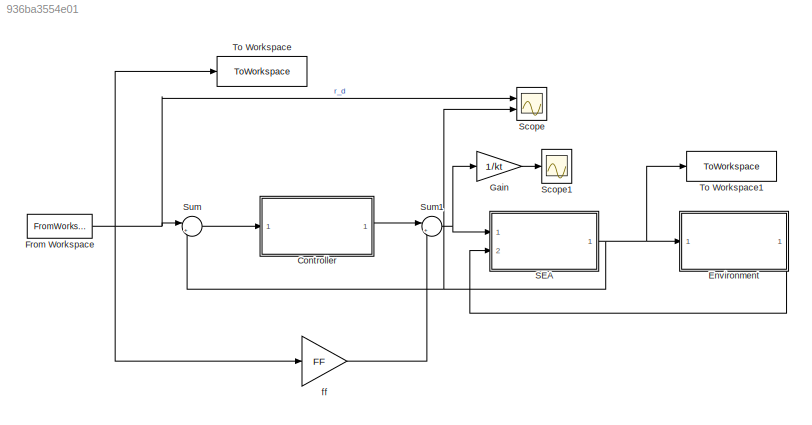
MODEL slx_936ba3554e01
KIND model
CONFIG AbsTol = auto
CONFIG EnableMultiTasking = on
CONFIG FixedStep = 1e-5
CONFIG MaxStep = 1e-4
CONFIG MinStep = auto
CONFIG RelTol = 1e-4
CONFIG SampleTimeConstraint = Unconstrained
CONFIG SolverName = ode4
CONFIG StartTime = 0.0
CONFIG StopTime = 10
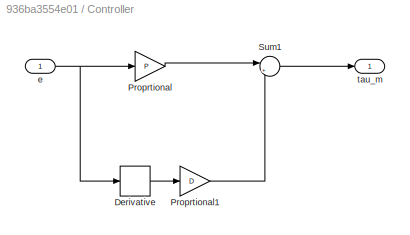
BLOCK [SubSystem] Controller
  Ports = [1, 1]
  RequestExecContextInheritance = off
BLOCK [Derivative] Controller/Derivative
BLOCK [Gain] Controller/Proprtional
  Gain = P
BLOCK [Gain] Controller/Proprtional1
  Gain = D
BLOCK [Sum] Controller/Sum1
  Inputs = |++
  Ports = [2, 1]
BLOCK [Inport] Controller/e
BLOCK [Outport] Controller/tau_m
  VectorParamsAs1DForOutWhenUnconnected = off
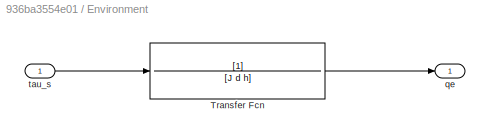
BLOCK [SubSystem] Environment
  Ports = [1, 1]
  RequestExecContextInheritance = off
BLOCK [TransferFcn] Environment/Transfer Fcn
  Denominator = [J d h]
BLOCK [Outport] Environment/qe
  VectorParamsAs1DForOutWhenUnconnected = off
BLOCK [Inport] Environment/tau_s
BLOCK [FromWorkspace] From Workspace
  VariableName = var
BLOCK [Gain] Gain
  Gain = 1/kt
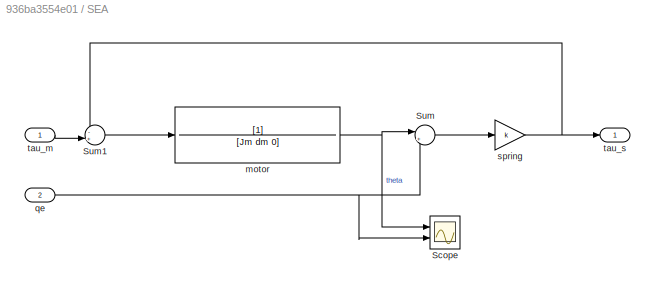
BLOCK [SubSystem] SEA
  Ports = [2, 1]
  RequestExecContextInheritance = off
BLOCK [Scope] SEA/Scope
  Floating = off
  NumInputPorts = 2
  Ports = [2]
  ScopeSpecificationString = Simulink.scopes.TimeScopeBlockCfg('CurrentConfiguration', extmgr.ConfigurationSet(extmgr.Configuration('Core','General UI',true),extmgr.Configuration('Core','Source UI',true),extmgr.Configuration('Sources','WiredSimulink',true,'DataLoggingVariableName','ScopeData1'),extmgr.Configuration('Visuals','Time Domain',true,'SerializedDisplays',{struct('MinYLimReal','-0.06616','MaxYLimReal','0.12777','YLab...<+1453ch>
BLOCK [Sum] SEA/Sum
  Inputs = |+-
  Ports = [2, 1]
BLOCK [Sum] SEA/Sum1
  Inputs = -+|
  Ports = [2, 1]
BLOCK [TransferFcn] SEA/motor 
  Denominator = [Jm dm 0]
BLOCK [Inport] SEA/qe 
  Port = 2
BLOCK [Gain] SEA/spring 
  Gain = k
BLOCK [Inport] SEA/tau_m
BLOCK [Outport] SEA/tau_s
  VectorParamsAs1DForOutWhenUnconnected = off
BLOCK [Scope] Scope
  Floating = off
  NumInputPorts = 2
  Ports = [2]
  ScopeSpecificationString = Simulink.scopes.TimeScopeBlockCfg('CurrentConfiguration', extmgr.ConfigurationSet(extmgr.Configuration('Core','General UI',true),extmgr.Configuration('Core','Source UI',true),extmgr.Configuration('Sources','WiredSimulink',true,'DataLogging',true,'DataLoggingSaveFormat','StructureWithTime'),extmgr.Configuration('Visuals','Time Domain',true,'SerializedDisplays',{struct('MinYLimReal','-4.99999','MaxY...<+1528ch>
BLOCK [Scope] Scope1
  Floating = off
  NumInputPorts = 1
  Ports = [1]
  ScopeSpecificationString = Simulink.scopes.TimeScopeBlockCfg('CurrentConfiguration', extmgr.ConfigurationSet(extmgr.Configuration('Core','General UI',true),extmgr.Configuration('Core','Source UI',true),extmgr.Configuration('Sources','WiredSimulink',true,'DataLoggingVariableName','ScopeData1'),extmgr.Configuration('Visuals','Time Domain',true,'SerializedDisplays',{struct('MinYLimReal','-3.56951','MaxYLimReal','8.68202','YLab...<+1499ch>
BLOCK [Sum] Sum
  Inputs = |+-
  Ports = [2, 1]
BLOCK [Sum] Sum1
  Inputs = |++
  Ports = [2, 1]
BLOCK [ToWorkspace] To Workspace
  FixptAsFi = on
  MaxDataPoints = inf
  Ports = [1]
  SampleTime = -1
  SaveFormat = Structure With Time
  VariableName = input
BLOCK [ToWorkspace] To Workspace1
  FixptAsFi = on
  MaxDataPoints = inf
  Ports = [1]
  SampleTime = -1
  SaveFormat = Structure With Time
  VariableName = output
BLOCK [Gain] ff 
  Gain = FF
LINE Controller/Derivative:1 -> Controller/Proprtional1:1
LINE Controller/Proprtional1:1 -> Controller/Sum1:2
LINE Controller/Proprtional:1 -> Controller/Sum1:1
LINE Controller/Sum1:1 -> Controller/tau_m:1
NET Controller/e:1 -> Controller/Derivative:1, Controller/Proprtional:1
LINE Controller:1 -> Sum1:1
LINE Environment/Transfer Fcn:1 -> Environment/qe:1
LINE Environment/tau_s:1 -> Environment/Transfer Fcn:1
LINE Environment:1 -> SEA:2
NET From Workspace:1 -> Scope:1, Sum:1, To Workspace:1, ff :1
LINE Gain:1 -> Scope1:1
LINE SEA/Sum1:1 -> SEA/motor :1
LINE SEA/Sum:1 -> SEA/spring :1
NET SEA/motor :1 -> SEA/Scope:1, SEA/Sum:1
NET SEA/qe :1 -> SEA/Scope:2, SEA/Sum:2
NET SEA/spring :1 -> SEA/Sum1:1, SEA/tau_s:1
LINE SEA/tau_m:1 -> SEA/Sum1:2
NET SEA:1 -> Environment:1, Scope:2, Sum:2, To Workspace1:1
NET Sum1:1 -> Gain:1, SEA:1
LINE Sum:1 -> Controller:1
LINE ff :1 -> Sum1:2
note: NET lines group one-source signal fan-out (src -> all destinations, sorted); 1:1 wires keep LINE
